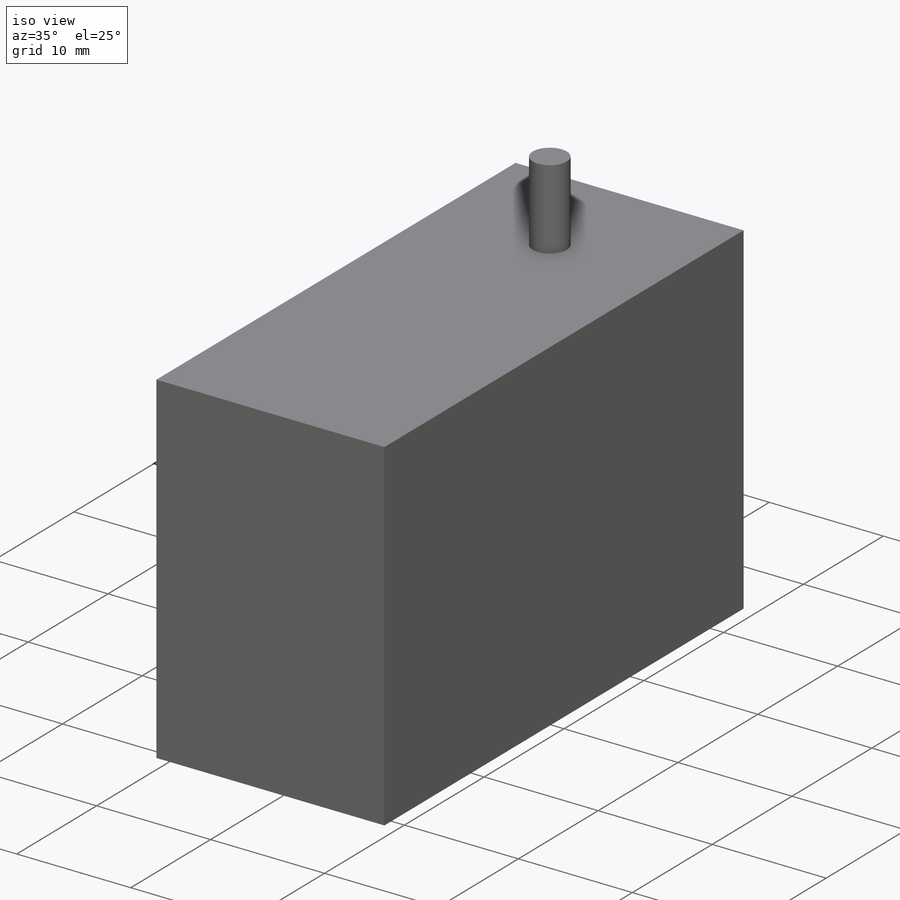
[diagram: iso view]
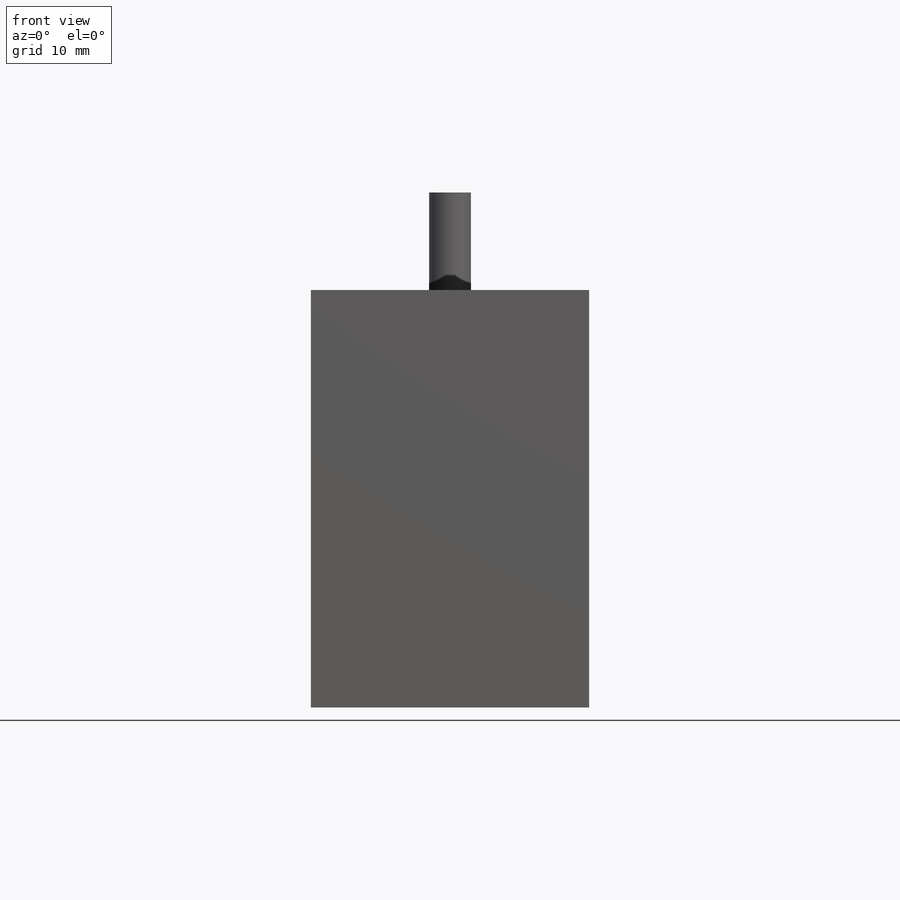
[diagram: front view]
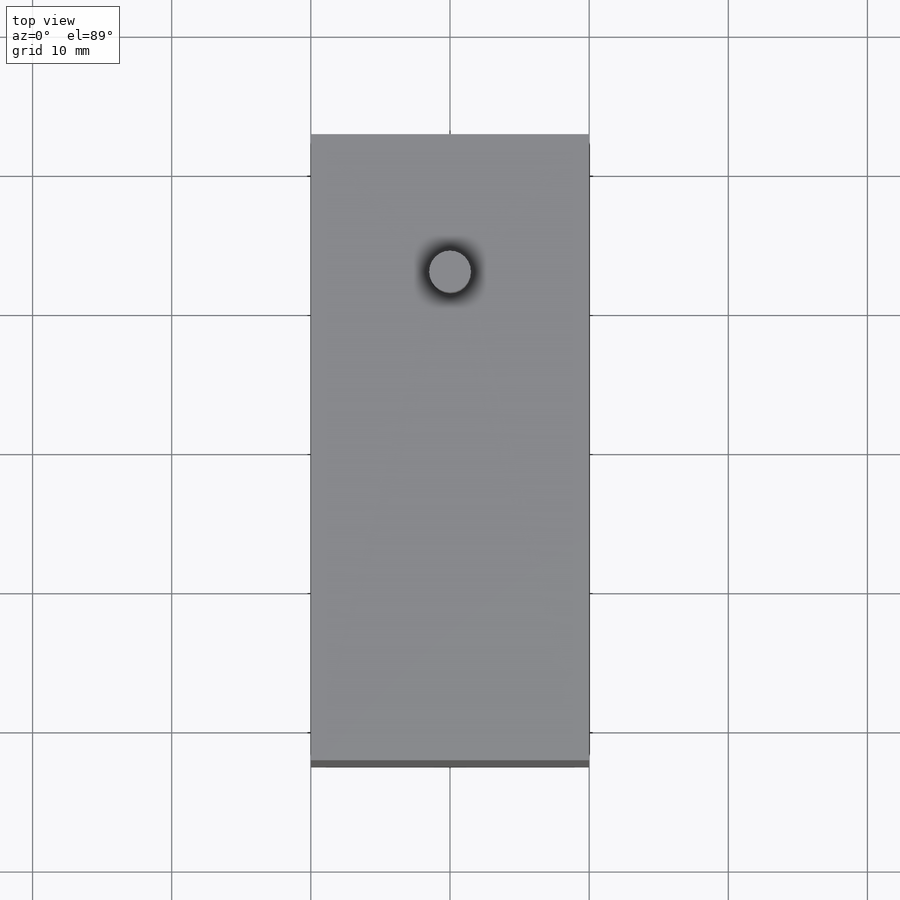
[diagram: top view]
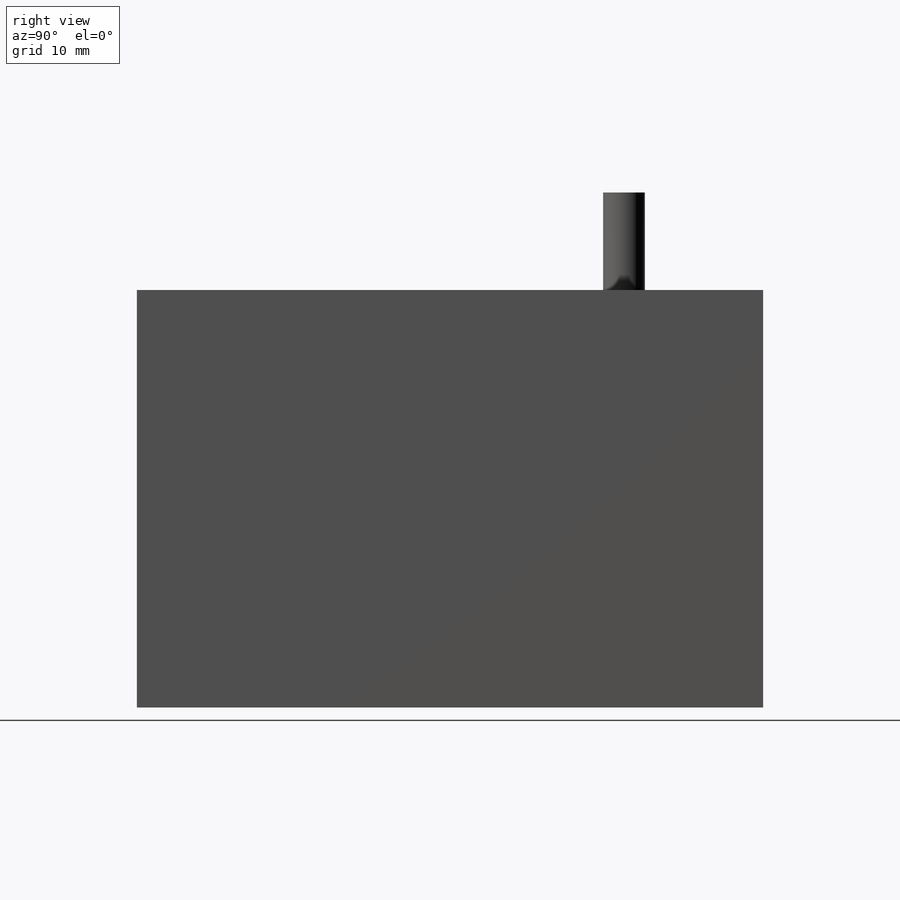
[diagram: right view]
SOLIDWORKS PART (.sldprt)
format: sldprt  version: not decoded by parser v0  size: 265,728 bytes
history: native  units: mm
features: sketch x4, plane x3, extrude x2, material x1, hole x1 (+9 scaffold rows collapsed)
feature tree (20):
  scaffold x9  (default folders/planes/origin — collapsed)
  material  "Material <not specified>"
  plane  "Ön Düzlem"
  plane  "Üst Düzlem"
  plane  "Sağ Düzlem"
  sketch  "Sketch1"  dims[D1=45.0mm D2=20.0mm]
  extrude  "Boss-Extrude1"  Depth=30mm
  sketch  "Sketch2"  dims[c1.D1=~2.241886mm c1.D2=3.0mm c2.D1=10.0mm]
  extrude  "Boss-Extrude2"  Depth=7mm
  hole  "#4-48 Tapped Hole1"  Diameter=2.3749mm Depth=3.5mm
  sketch  "Sketch4"
  sketch  "Sketch3"  dims[hole-wizard template sketch: 46 standard entries collapsed; hole parameters kept: c15.Tap Drill Dia.=2.3749mm c15.Tap Drill Depth=3.5mm c15.D3=~14.816244mm c15.Drill Angle=118.0deg]
decode coverage: 6 of 7 modeling features carry decoded parameters
note: ~ marks probable driven/reference dimensions
note: suppression state not decoded; provenance and decode notes live in map.json
